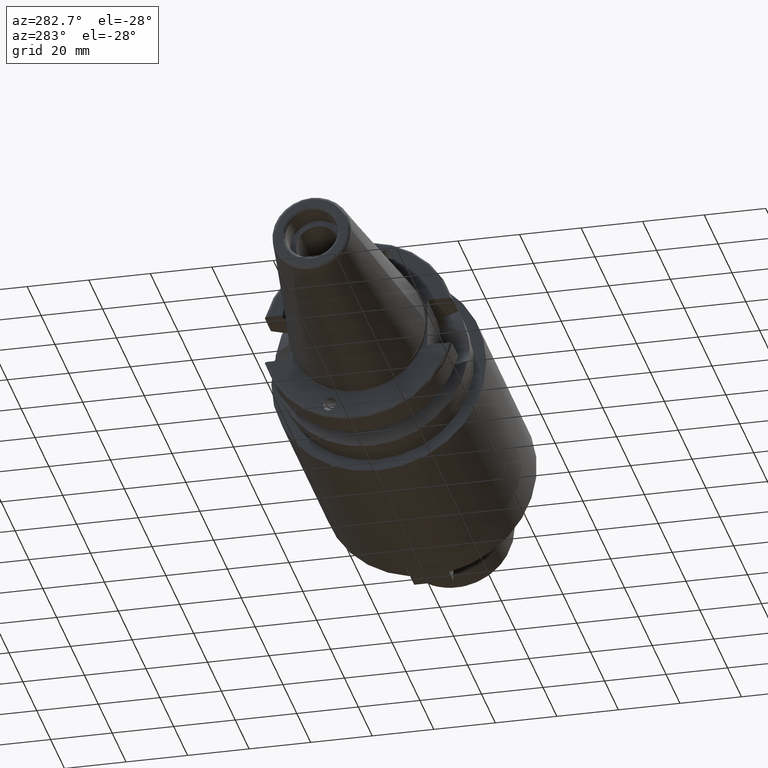
[diagram: clean part render]
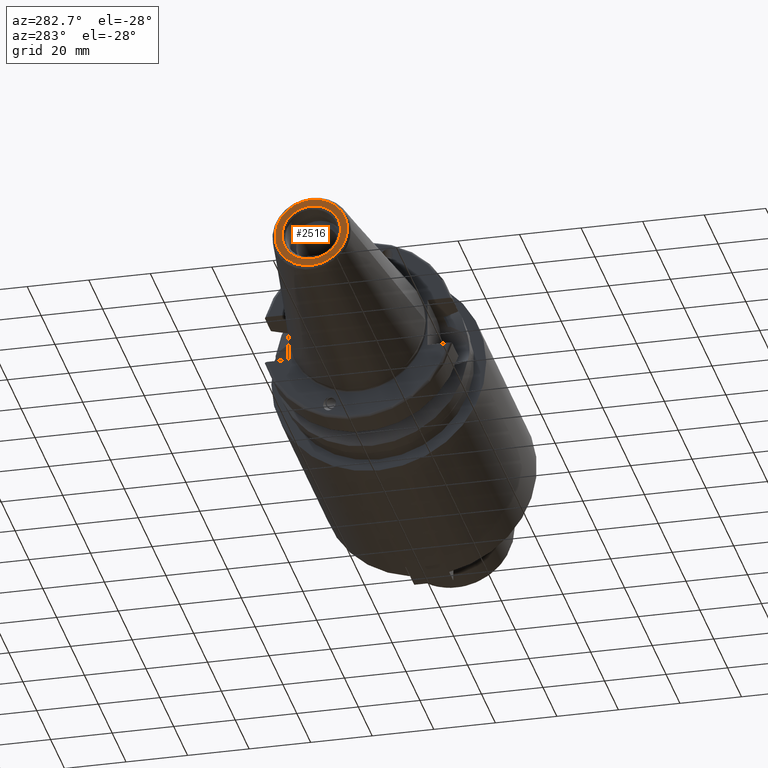
[diagram: same view with one face highlighted and labeled with its STEP entity id]
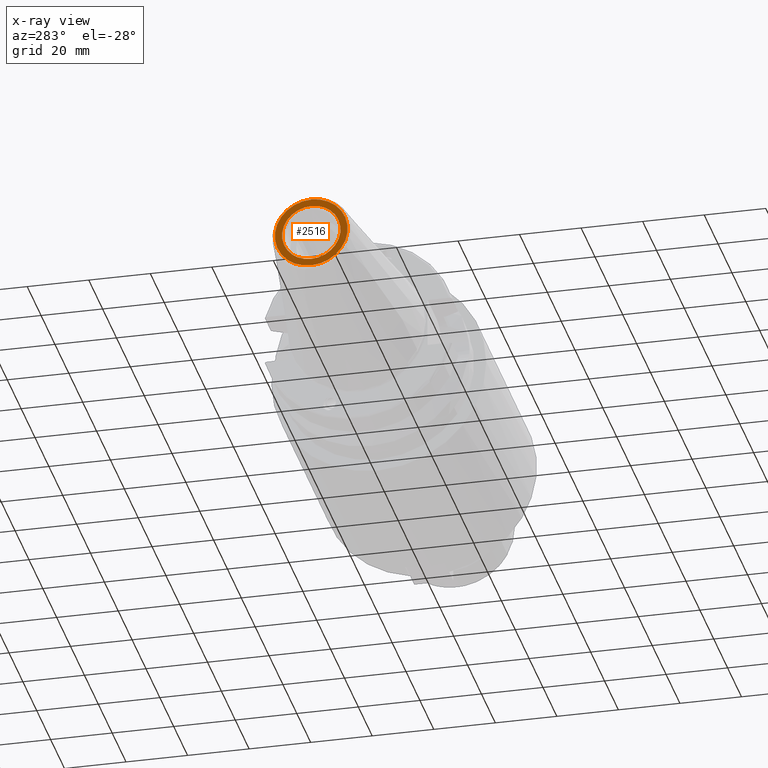
[diagram: x-ray of the same camera — body ghosted, the highlighted face saturated]
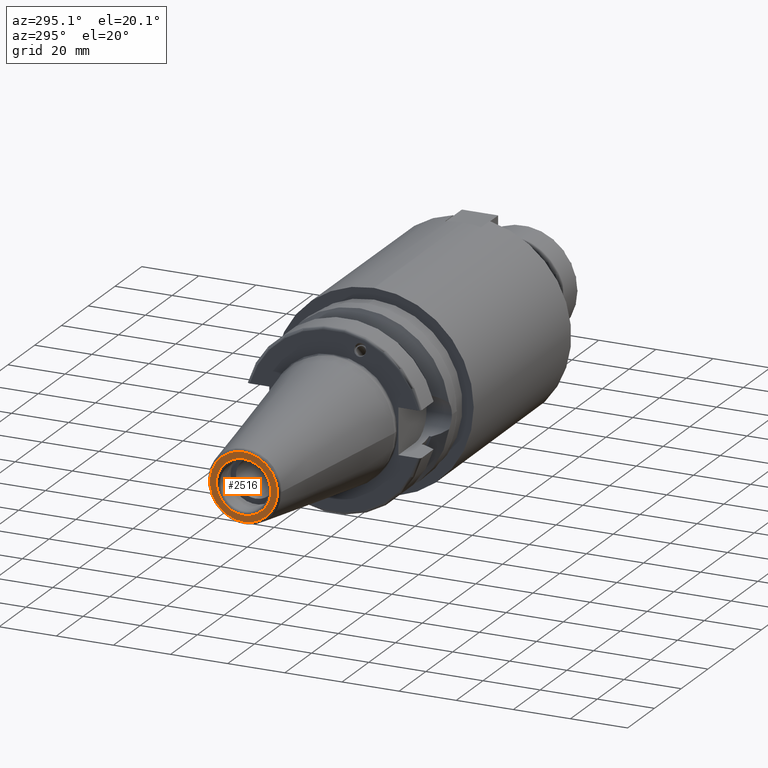
[diagram: same view with one face highlighted and labeled with its STEP entity id]
A machine part, auxiliary view. The second image highlights one B-rep face of the part: STEP entity #2516.
The next image is the same camera in x-ray: the body ghosted, the highlighted face saturated — about 0% of this face is hidden behind the body in this view.
A second angle (auxiliary view) of the same face is appended — the face is thin or edge-on in the first view.
In plain terms, the highlighted planar face has unit normal (-1, 0, 0).
Its self-contained STEP definition (entity closure, byte-faithful):
#554=FACE_BOUND('',#951,.T.);
#656=CIRCLE('',#2861,9.5);
#660=CIRCLE('',#2866,11.8227555970304);
#813=FACE_OUTER_BOUND('',#950,.T.);
#950=EDGE_LOOP('',(#2105));
#951=EDGE_LOOP('',(#2106));
#1414=VERTEX_POINT('',#4431);
#1417=VERTEX_POINT('',#4439);
#1663=EDGE_CURVE('',#1414,#1414,#656,.T.);
#1667=EDGE_CURVE('',#1417,#1417,#660,.T.);
#2105=ORIENTED_EDGE('',*,*,#1667,.F.);
#2106=ORIENTED_EDGE('',*,*,#1663,.T.);
#2422=PLANE('',#2865);
#2516=ADVANCED_FACE('',(#813,#554),#2422,.T.);
#2861=AXIS2_PLACEMENT_3D('',#4432,#3388,#3389);
#2865=AXIS2_PLACEMENT_3D('',#4438,#3396,#3397);
#2866=AXIS2_PLACEMENT_3D('',#4440,#3398,#3399);
#3388=DIRECTION('center_axis',(1.,0.,0.));
#3389=DIRECTION('ref_axis',(0.,0.,-1.));
#3396=DIRECTION('center_axis',(-1.,0.,0.));
#3397=DIRECTION('ref_axis',(0.,0.,1.));
#3398=DIRECTION('center_axis',(1.,0.,0.));
#3399=DIRECTION('ref_axis',(0.,0.,-1.));
#4431=CARTESIAN_POINT('',(-65.4,-1.16341445918999E-15,9.5));
#4432=CARTESIAN_POINT('Origin',(-65.4,0.,0.));
#4438=CARTESIAN_POINT('Origin',(-65.4,11.8227555970304,0.));
#4439=CARTESIAN_POINT('',(-65.4,-1.44786997990048E-15,11.8227555970304));
#4440=CARTESIAN_POINT('Origin',(-65.4,0.,0.));